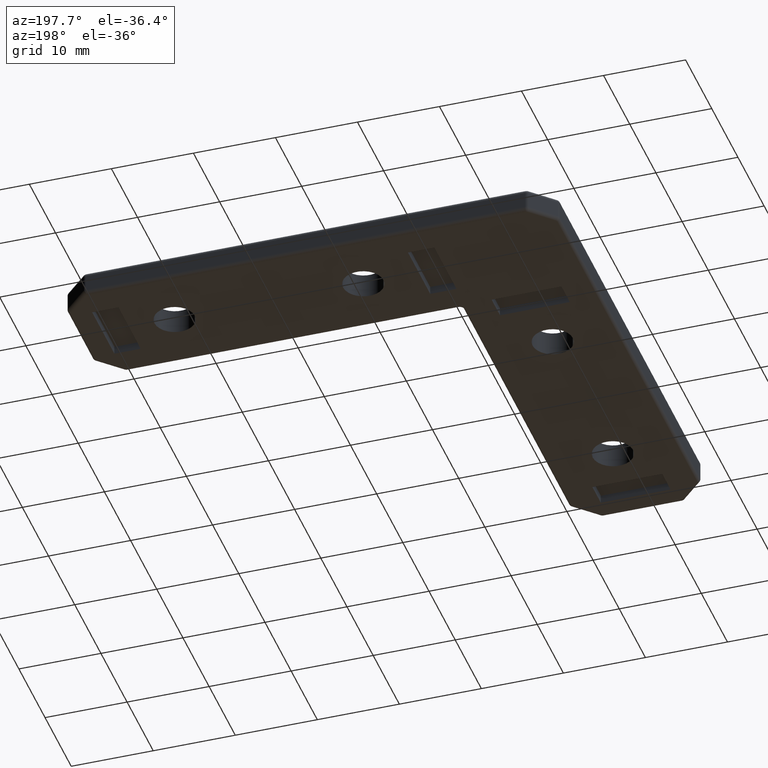
[diagram: clean part render]
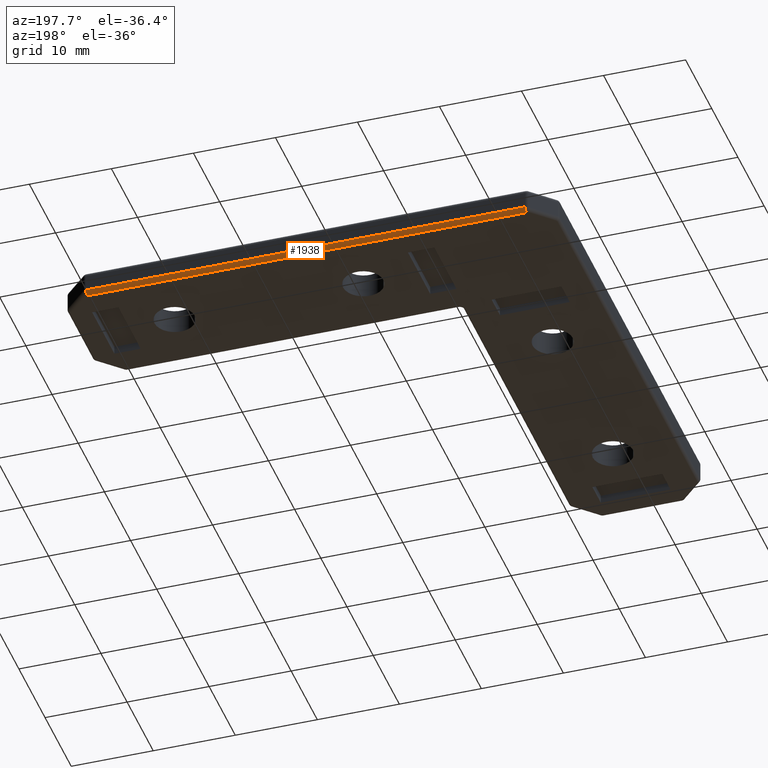
[diagram: same view with one face highlighted and labeled with its STEP entity id]
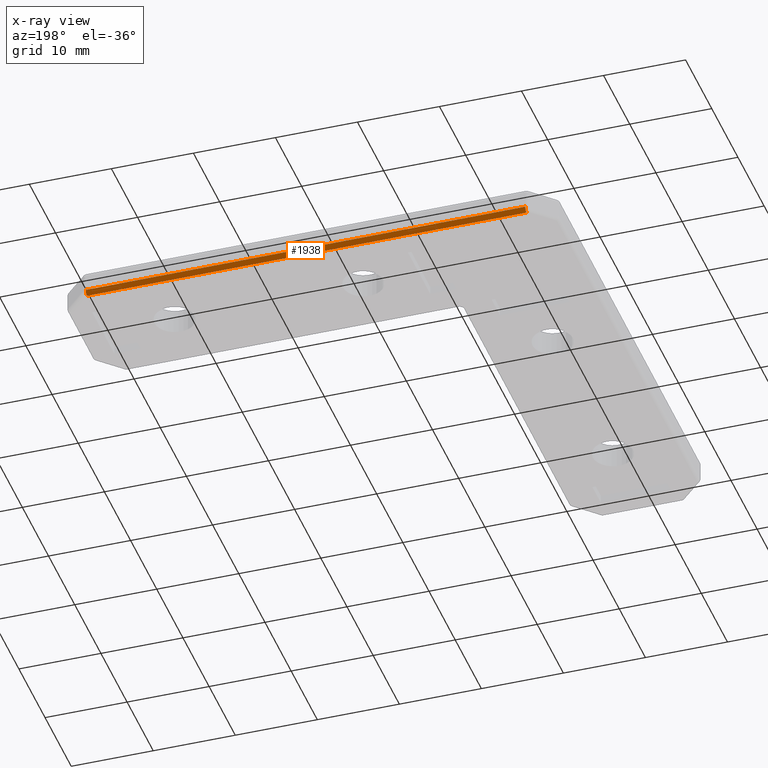
[diagram: x-ray of the same camera — body ghosted, the highlighted face saturated]
A machine part, auxiliary view. The second image highlights one B-rep face of the part: STEP entity #1938.
The next image is the same camera in x-ray: the body ghosted, the highlighted face saturated — about 0% of this face is hidden behind the body in this view.
In plain terms, the highlighted cylindrical surface (edge-blend (fillet) strip) has radius 0.5 mm, axis along (1, 0, 0).
Its self-contained STEP definition (entity closure, byte-faithful):
#99=CIRCLE('',#2118,0.5);
#110=CIRCLE('',#2137,0.5);
#271=FACE_OUTER_BOUND('',#403,.T.);
#403=EDGE_LOOP('',(#1579,#1580,#1581,#1582));
#610=LINE('',#3248,#788);
#611=LINE('',#3249,#789);
#788=VECTOR('',#2651,53.5857864376269);
#789=VECTOR('',#2652,53.5857864376269);
#955=VERTEX_POINT('',#3202);
#956=VERTEX_POINT('',#3204);
#966=VERTEX_POINT('',#3241);
#968=VERTEX_POINT('',#3244);
#1172=EDGE_CURVE('',#955,#956,#99,.F.);
#1191=EDGE_CURVE('',#968,#966,#110,.F.);
#1193=EDGE_CURVE('',#956,#968,#610,.T.);
#1194=EDGE_CURVE('',#966,#955,#611,.T.);
#1579=ORIENTED_EDGE('',*,*,#1172,.T.);
#1580=ORIENTED_EDGE('',*,*,#1193,.T.);
#1581=ORIENTED_EDGE('',*,*,#1191,.T.);
#1582=ORIENTED_EDGE('',*,*,#1194,.T.);
#1830=CYLINDRICAL_SURFACE('',#2139,0.5);
#1938=ADVANCED_FACE('',(#271),#1830,.T.);
#2118=AXIS2_PLACEMENT_3D('',#3206,#2599,#2600);
#2137=AXIS2_PLACEMENT_3D('',#3245,#2645,#2646);
#2139=AXIS2_PLACEMENT_3D('',#3247,#2649,#2650);
#2599=DIRECTION('center_axis',(1.,0.,1.77635683940025E-14));
#2600=DIRECTION('ref_axis',(0.,1.,0.));
#2645=DIRECTION('center_axis',(-1.,1.77635683940025E-14,0.));
#2646=DIRECTION('ref_axis',(0.,0.,-1.));
#2649=DIRECTION('center_axis',(1.,0.,0.));
#2650=DIRECTION('ref_axis',(0.,0.707106781186549,-0.707106781186546));
#2651=DIRECTION('',(-1.,0.,0.));
#2652=DIRECTION('',(1.,0.,0.));
#3202=CARTESIAN_POINT('',(40.7928932188134,16.,0.5));
#3204=CARTESIAN_POINT('',(40.7928932188135,15.5,0.));
#3206=CARTESIAN_POINT('Origin',(40.7928932188134,15.5,0.5));
#3241=CARTESIAN_POINT('',(-12.7928932188135,16.,0.5));
#3244=CARTESIAN_POINT('',(-12.7928932188135,15.5,0.));
#3245=CARTESIAN_POINT('Origin',(-12.7928932188135,15.5,0.5));
#3247=CARTESIAN_POINT('Origin',(24.9666666666667,15.5,0.5));
#3248=CARTESIAN_POINT('',(24.9666666666667,15.5,0.));
#3249=CARTESIAN_POINT('',(24.9666666666667,16.,0.5));